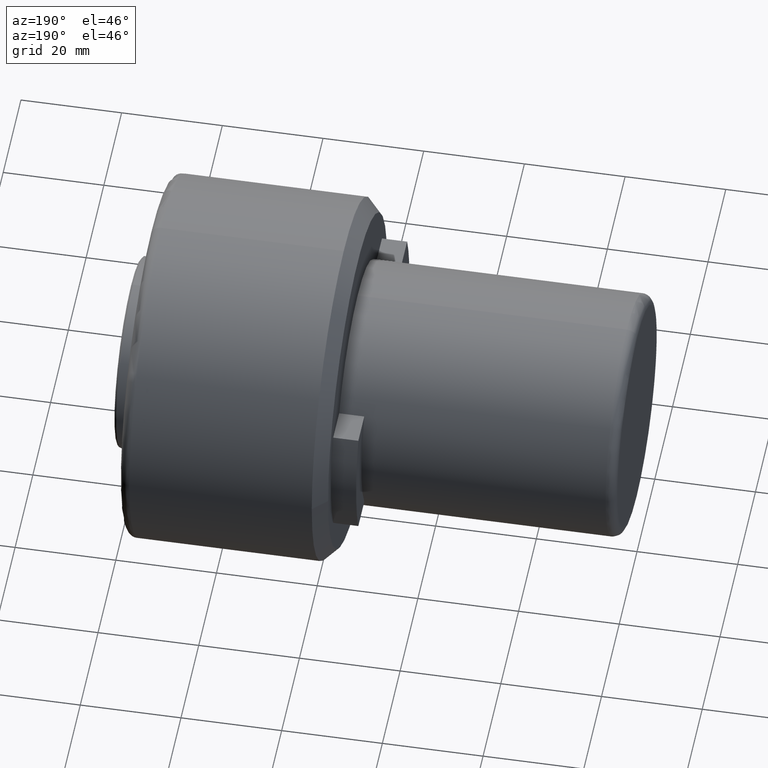
[diagram: clean part render]
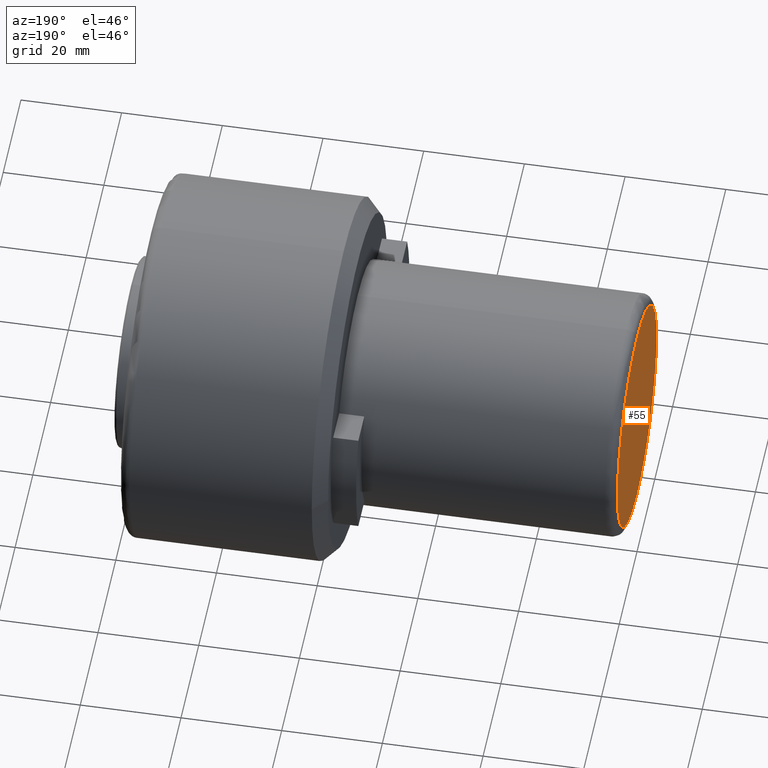
[diagram: same view with one face highlighted and labeled with its STEP entity id]
A machine part, auxiliary view. The second image highlights one B-rep face of the part: STEP entity #55.
In plain terms, the highlighted planar face has unit normal (-1, 0, 0).
Its self-contained STEP definition (entity closure, byte-faithful):
#55 = ADVANCED_FACE ( 'NONE', ( #445 ), #999, .T. ) ;
#112 = EDGE_LOOP ( 'NONE', ( #1079, #238 ) ) ;
#238 = ORIENTED_EDGE ( 'NONE', *, *, #484, .T. ) ;
#250 = DIRECTION ( 'NONE',  ( -1.000000000000000000, 0.0000000000000000000, 0.0000000000000000000 ) ) ;
#279 = VERTEX_POINT ( 'NONE', #1130 ) ;
#445 = FACE_OUTER_BOUND ( 'NONE', #112, .T. ) ;
#467 = AXIS2_PLACEMENT_3D ( 'NONE', #620, #250, #551 ) ;
#484 = EDGE_CURVE ( 'NONE', #898, #279, #1106, .T. ) ;
#527 = DIRECTION ( 'NONE',  ( 0.0000000000000000000, 0.0000000000000000000, 1.000000000000000000 ) ) ;
#551 = DIRECTION ( 'NONE',  ( 0.0000000000000000000, 0.0000000000000000000, 1.000000000000000000 ) ) ;
#620 = CARTESIAN_POINT ( 'NONE',  ( 0.0000000000000000000, 0.0000000000000000000, -7.733975497063264400E-015 ) ) ;
#670 = CIRCLE ( 'NONE', #1229, 22.00000000000000000 ) ;
#832 = CARTESIAN_POINT ( 'NONE',  ( 0.0000000000000000000, 2.816687638038912400E-015, -22.00000000000000700 ) ) ;
#898 = VERTEX_POINT ( 'NONE', #832 ) ;
#999 = PLANE ( 'NONE',  #1195 ) ;
#1026 = EDGE_CURVE ( 'NONE', #279, #898, #670, .T. ) ;
#1079 = ORIENTED_EDGE ( 'NONE', *, *, #1026, .T. ) ;
#1080 = DIRECTION ( 'NONE',  ( 0.0000000000000000000, 0.0000000000000000000, 1.000000000000000000 ) ) ;
#1106 = CIRCLE ( 'NONE', #467, 22.00000000000000000 ) ;
#1130 = CARTESIAN_POINT ( 'NONE',  ( 0.0000000000000000000, 0.0000000000000000000, 21.99999999999999300 ) ) ;
#1150 = CARTESIAN_POINT ( 'NONE',  ( 0.0000000000000000000, 0.0000000000000000000, -7.733975497063264400E-015 ) ) ;
#1162 = DIRECTION ( 'NONE',  ( -1.000000000000000000, 0.0000000000000000000, 0.0000000000000000000 ) ) ;
#1192 = DIRECTION ( 'NONE',  ( -1.000000000000000000, 0.0000000000000000000, 0.0000000000000000000 ) ) ;
#1195 = AXIS2_PLACEMENT_3D ( 'NONE', #1260, #1162, #527 ) ;
#1229 = AXIS2_PLACEMENT_3D ( 'NONE', #1150, #1192, #1080 ) ;
#1260 = CARTESIAN_POINT ( 'NONE',  ( 0.0000000000000000000, 21.60620000000000100, -21.60620000000000100 ) ) ;